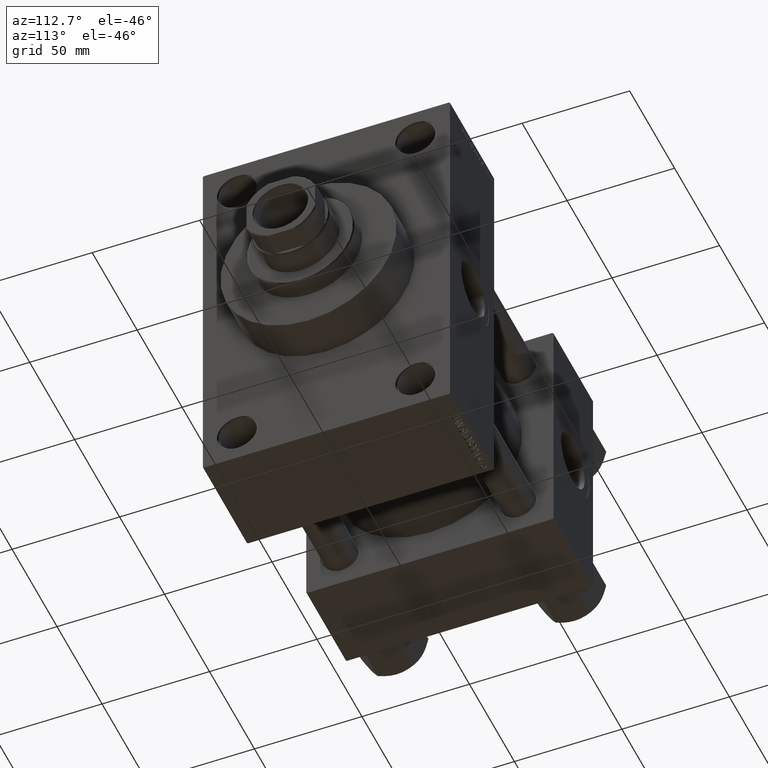
[diagram: clean part render]
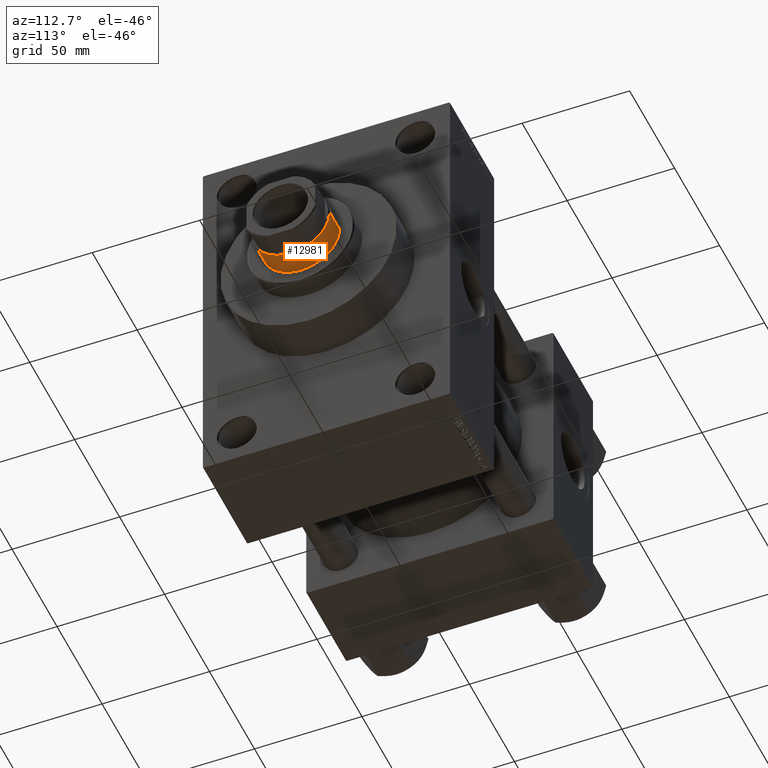
[diagram: same view with one face highlighted and labeled with its STEP entity id]
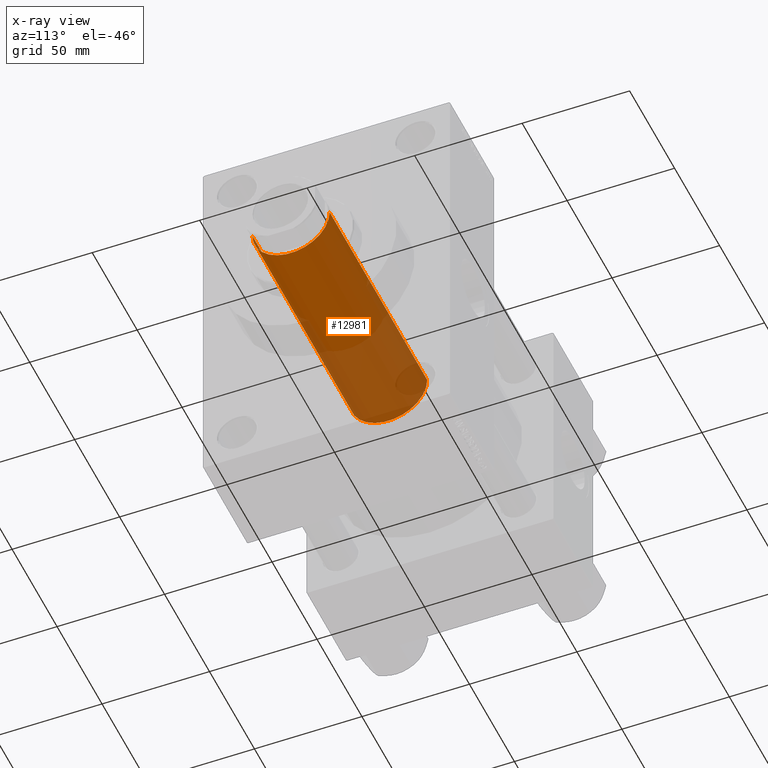
[diagram: x-ray of the same camera — body ghosted, the highlighted face saturated]
A machine part, auxiliary view. The second image highlights one B-rep face of the part: STEP entity #12981.
The next image is the same camera in x-ray: the body ghosted, the highlighted face saturated — about 46% of this face is hidden behind the body in this view.
In plain terms, the highlighted cylindrical surface (partial cylindrical patch) has radius 18 mm, axis along (-1, 0, 0).
Its self-contained STEP definition (entity closure, byte-faithful):
#304 = CYLINDRICAL_SURFACE ( 'NONE', #11257, 18.00000000000000000 ) ;
#996 = CIRCLE ( 'NONE', #19482, 18.00000000000000000 ) ;
#1233 = EDGE_CURVE ( 'NONE', #47710, #22126, #25598, .T. ) ;
#5404 = CARTESIAN_POINT ( 'NONE',  ( -18.00000000000000000, 0.000000000000000000, 46.00000000000000000 ) ) ;
#7773 = DIRECTION ( 'NONE',  ( -1.000000000000000000, 0.000000000000000000, 0.000000000000000000 ) ) ;
#8667 = EDGE_CURVE ( 'NONE', #24678, #22126, #38224, .T. ) ;
#11257 = AXIS2_PLACEMENT_3D ( 'NONE', #40555, #18387, #7773 ) ;
#11282 = ORIENTED_EDGE ( 'NONE', *, *, #30781, .T. ) ;
#11544 = ORIENTED_EDGE ( 'NONE', *, *, #8667, .F. ) ;
#11749 = DIRECTION ( 'NONE',  ( -0.000000000000000000, -0.000000000000000000, -1.000000000000000000 ) ) ;
#12981 = ADVANCED_FACE ( 'NONE', ( #40320 ), #304, .T. ) ;
#14451 = VERTEX_POINT ( 'NONE', #18519 ) ;
#15354 = CARTESIAN_POINT ( 'NONE',  ( -18.00000000000000000, 0.000000000000000000, 155.0000000000000000 ) ) ;
#17007 = DIRECTION ( 'NONE',  ( 1.000000000000000000, 0.000000000000000000, 0.000000000000000000 ) ) ;
#18387 = DIRECTION ( 'NONE',  ( -0.000000000000000000, -0.000000000000000000, -1.000000000000000000 ) ) ;
#18519 = CARTESIAN_POINT ( 'NONE',  ( 18.00000000000000000, 2.204364238465235428E-15, 154.4999999999999716 ) ) ;
#19482 = AXIS2_PLACEMENT_3D ( 'NONE', #23157, #19541, #37141 ) ;
#19541 = DIRECTION ( 'NONE',  ( 0.000000000000000000, 0.000000000000000000, -1.000000000000000000 ) ) ;
#19968 = CARTESIAN_POINT ( 'NONE',  ( -18.00000000000000000, 0.000000000000000000, 154.4999999999999716 ) ) ;
#20413 = CARTESIAN_POINT ( 'NONE',  ( 18.00000000000000000, 2.204364238465235428E-15, 155.0000000000000000 ) ) ;
#22126 = VERTEX_POINT ( 'NONE', #5404 ) ;
#23157 = CARTESIAN_POINT ( 'NONE',  ( 0.000000000000000000, 0.000000000000000000, 154.4999999999999716 ) ) ;
#24238 = DIRECTION ( 'NONE',  ( 0.000000000000000000, 0.000000000000000000, 1.000000000000000000 ) ) ;
#24483 = CARTESIAN_POINT ( 'NONE',  ( 0.000000000000000000, 0.000000000000000000, 46.00000000000000000 ) ) ;
#24678 = VERTEX_POINT ( 'NONE', #19968 ) ;
#25598 = CIRCLE ( 'NONE', #28692, 18.00000000000000000 ) ;
#28345 = VECTOR ( 'NONE', #45957, 1000.000000000000000 ) ;
#28692 = AXIS2_PLACEMENT_3D ( 'NONE', #24483, #24238, #17007 ) ;
#30781 = EDGE_CURVE ( 'NONE', #14451, #47710, #46691, .T. ) ;
#30968 = ORIENTED_EDGE ( 'NONE', *, *, #41069, .T. ) ;
#32645 = VECTOR ( 'NONE', #11749, 1000.000000000000000 ) ;
#35448 = CARTESIAN_POINT ( 'NONE',  ( 18.00000000000000000, 2.204364238465235428E-15, 46.00000000000000000 ) ) ;
#37141 = DIRECTION ( 'NONE',  ( 1.000000000000000000, 0.000000000000000000, 0.000000000000000000 ) ) ;
#37147 = EDGE_LOOP ( 'NONE', ( #30968, #11282, #43974, #11544 ) ) ;
#38224 = LINE ( 'NONE', #15354, #32645 ) ;
#40320 = FACE_OUTER_BOUND ( 'NONE', #37147, .T. ) ;
#40555 = CARTESIAN_POINT ( 'NONE',  ( 0.000000000000000000, 0.000000000000000000, 155.0000000000000000 ) ) ;
#41069 = EDGE_CURVE ( 'NONE', #24678, #14451, #996, .T. ) ;
#43974 = ORIENTED_EDGE ( 'NONE', *, *, #1233, .T. ) ;
#45957 = DIRECTION ( 'NONE',  ( -0.000000000000000000, -0.000000000000000000, -1.000000000000000000 ) ) ;
#46691 = LINE ( 'NONE', #20413, #28345 ) ;
#47710 = VERTEX_POINT ( 'NONE', #35448 ) ;